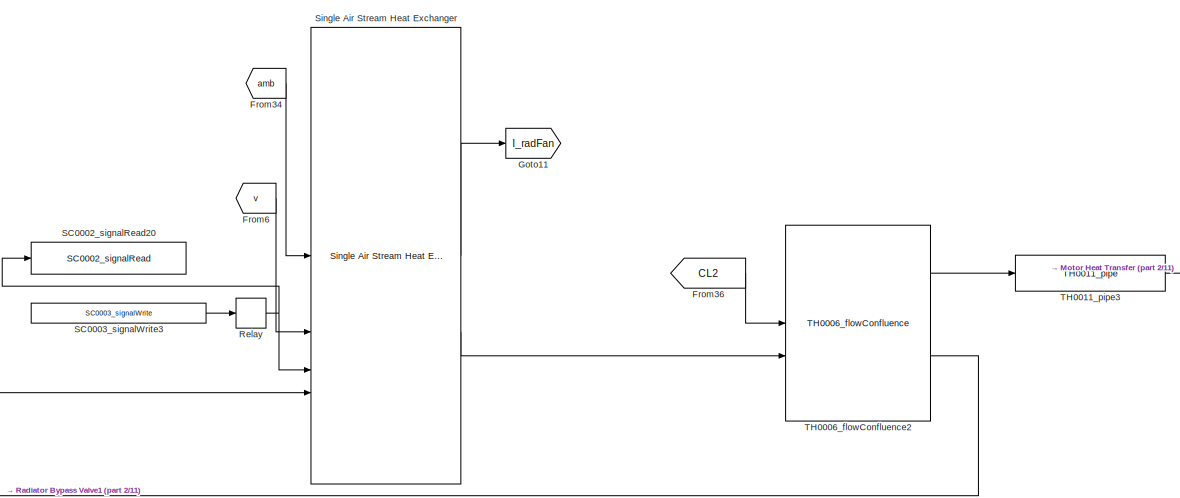
[diagram: root canvas - part 1/11, top right region]
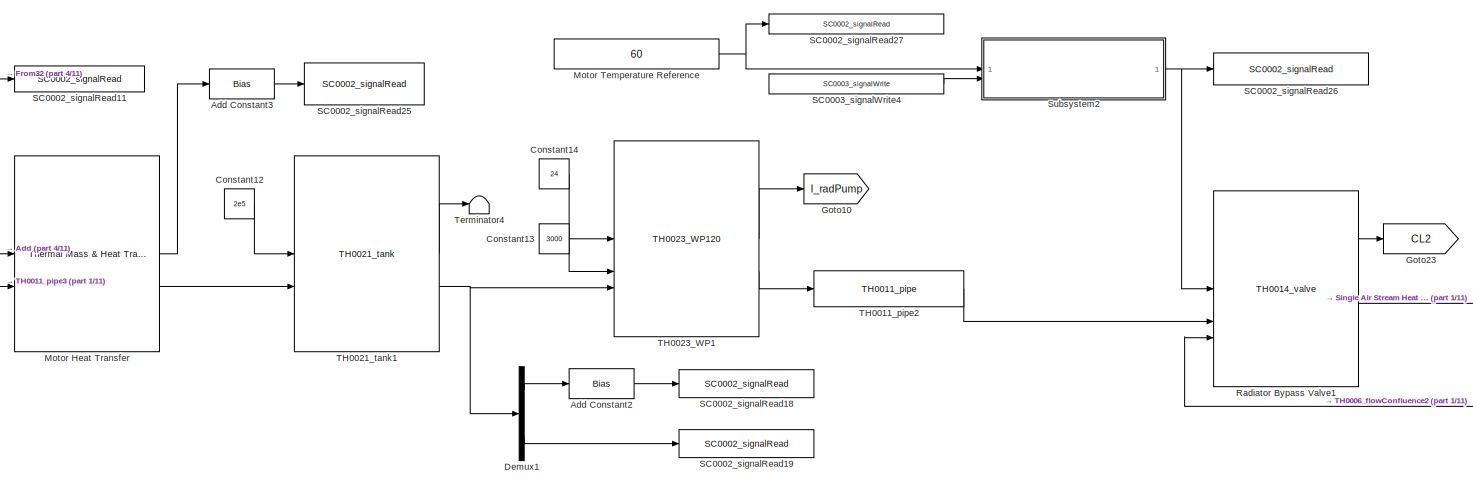
[diagram: root canvas - part 2/11, top center region]
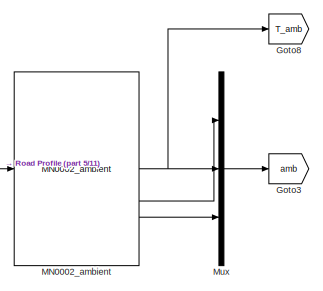
[diagram: root canvas - part 3/11, top left region]
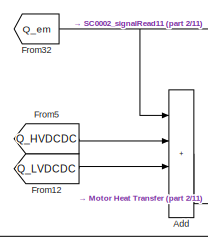
[diagram: root canvas - part 4/11, top center region]
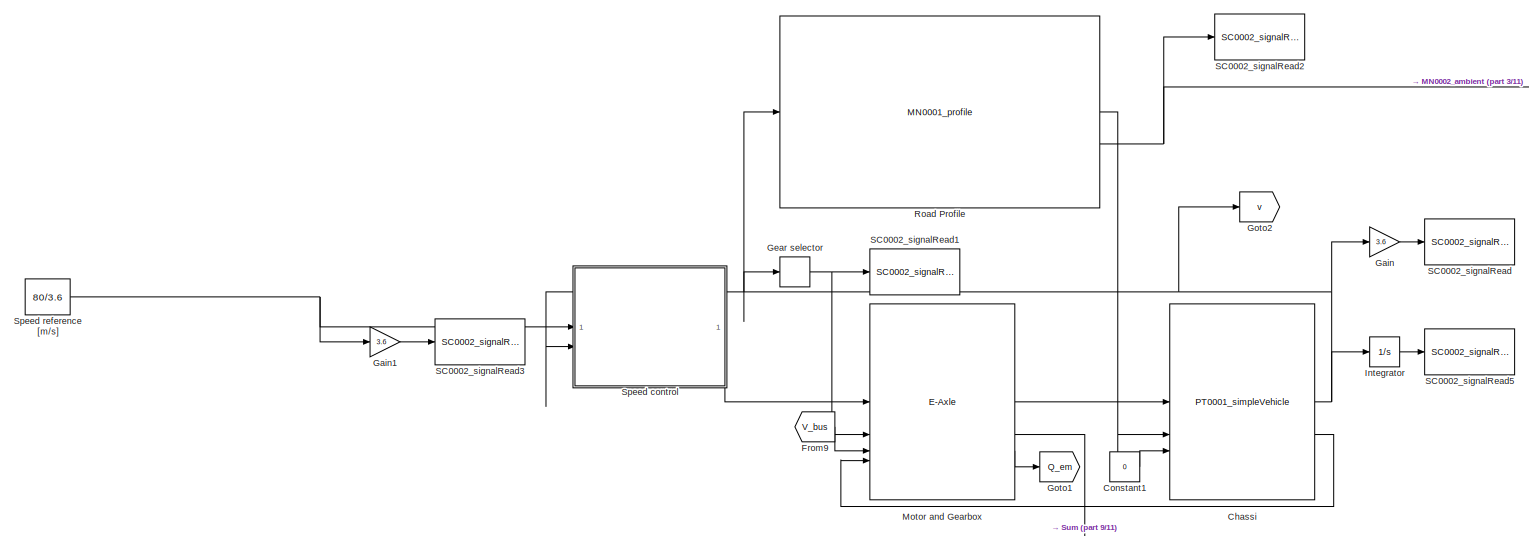
[diagram: root canvas - part 5/11, middle left region]
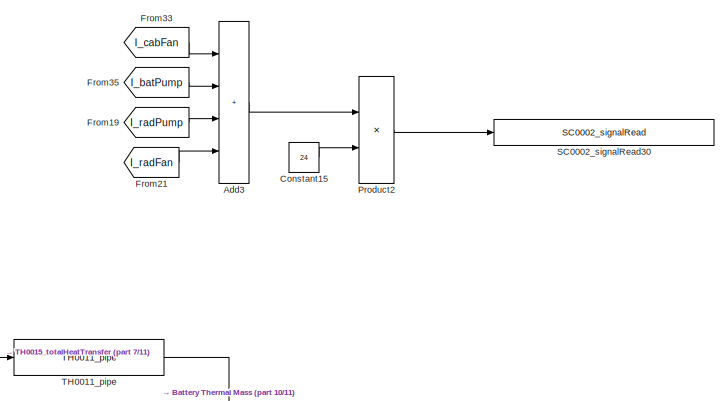
[diagram: root canvas - part 6/11, bottom right region]
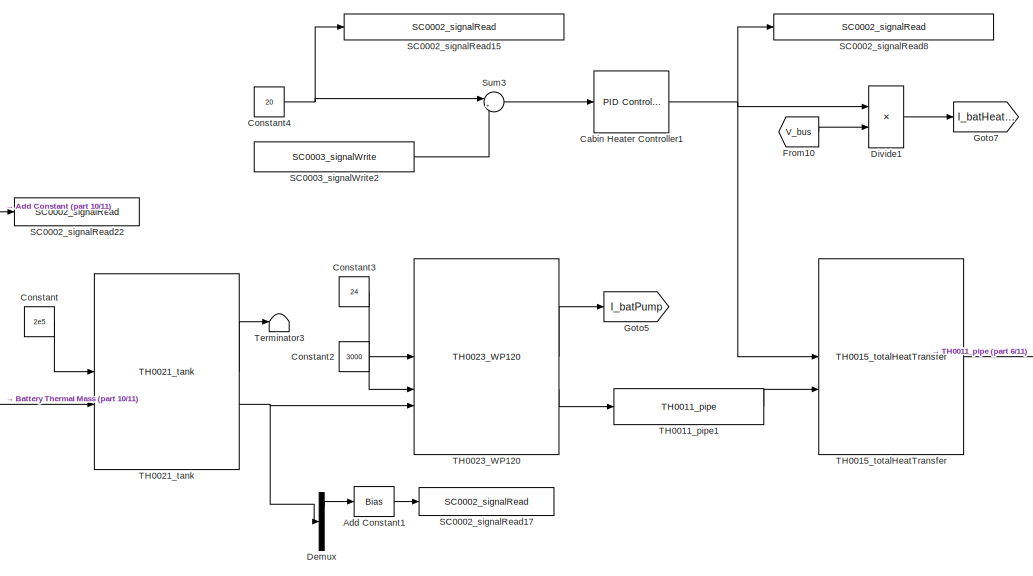
[diagram: root canvas - part 7/11, bottom right region]
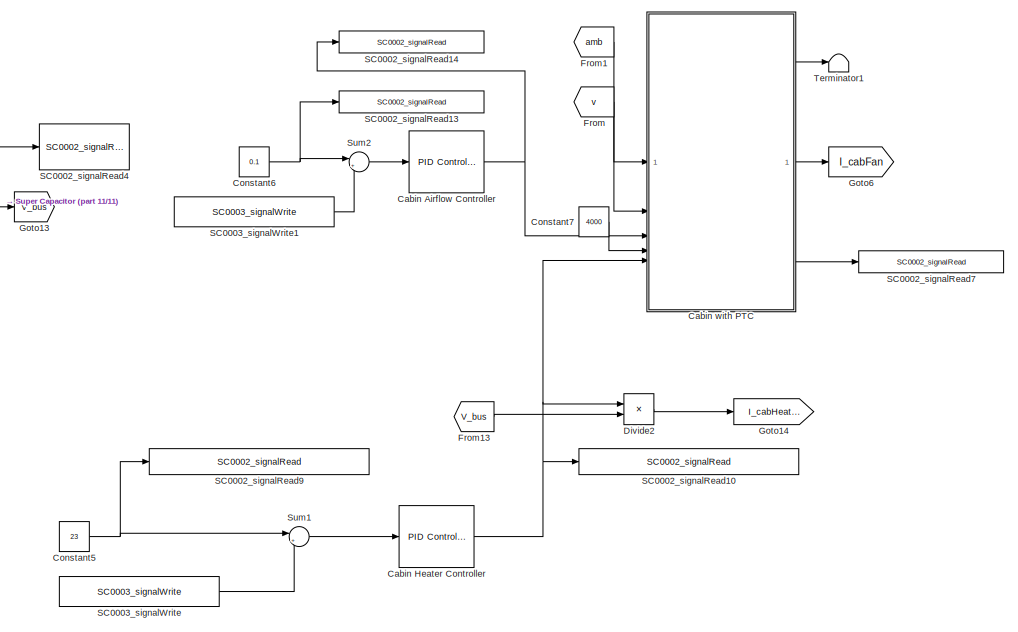
[diagram: root canvas - part 8/11, bottom center region]
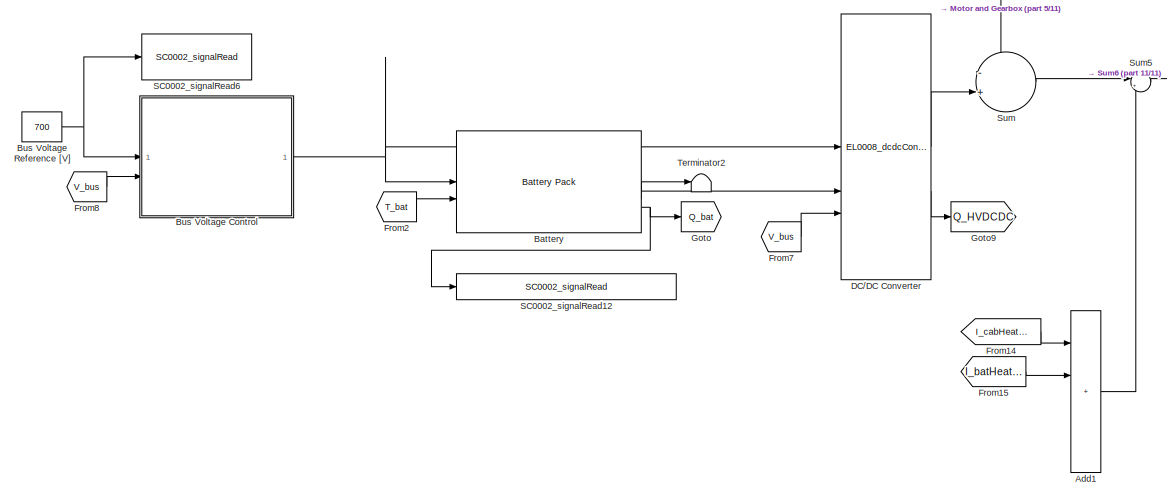
[diagram: root canvas - part 9/11, bottom left region]
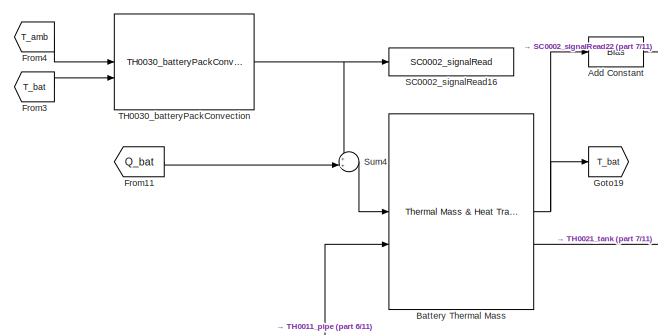
[diagram: root canvas - part 10/11, bottom center region]
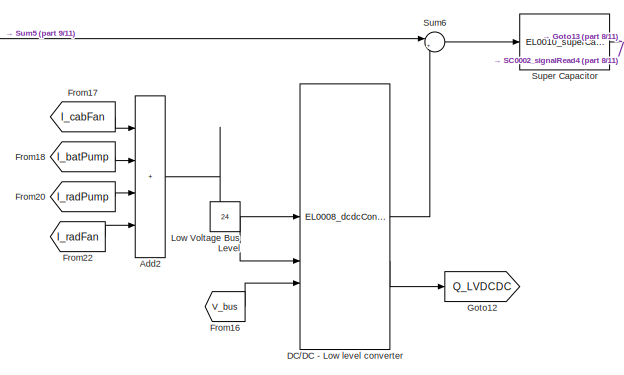
[diagram: root canvas - part 11/11, bottom left region]
MODEL slx_f05cbd5626cb
KIND model
CONFIG AbsTol = auto
CONFIG EnableMultiTasking = off
CONFIG FixedStep = auto
CONFIG MaxStep = 1
CONFIG MinStep = auto
CONFIG RelTol = 1e-3
CONFIG SampleTimeConstraint = Unconstrained
CONFIG SolverName = ode23tb
CONFIG StartTime = 0.0
CONFIG StopTime = 20e3
BLOCK [Sum] Add
  IconShape = rectangular
  Inputs = ++++
BLOCK [Bias] Add Constant
  Bias = -273.15
  SaturateOnIntegerOverflow = off
BLOCK [Bias] Add Constant1
  Bias = -273.15
  SaturateOnIntegerOverflow = off
BLOCK [Bias] Add Constant2
  Bias = -273.15
  SaturateOnIntegerOverflow = off
BLOCK [Bias] Add Constant3
  Bias = -273.15
  SaturateOnIntegerOverflow = off
BLOCK [Sum] Add1
  IconShape = rectangular
  Inputs = ++++
BLOCK [Sum] Add2
  IconShape = rectangular
  Inputs = ++++
BLOCK [Sum] Add3
  IconShape = rectangular
  Inputs = ++++
BLOCK [Reference] Battery  REF=component_lib/Battery Pack  (lib defined in slx_7b23c5cf3aa6)
  SourceBlock = component_lib/Battery Pack
BLOCK [Reference] Battery Thermal Mass  REF=component_lib/Thermal Mass & Heat Transfer  (lib defined in slx_7b23c5cf3aa6)
  SourceBlock = component_lib/Thermal Mass & Heat Transfer
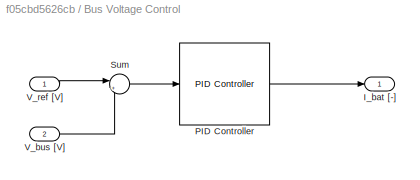
BLOCK [SubSystem] Bus Voltage Control
BLOCK [Outport] Bus Voltage Control/I_bat [-]
BLOCK [Reference] Bus Voltage Control/PID Controller  REF=slpidlib/PID Controller
  SourceBlock = slpidlib/PID Controller
  SourceType = PID 1dof
BLOCK [Sum] Bus Voltage Control/Sum
  Inputs = |+-
BLOCK [Inport] Bus Voltage Control/V_bus [V]
  Port = 2
BLOCK [Inport] Bus Voltage Control/V_ref [V]
BLOCK [Constant] Bus Voltage Reference [V]
  Value = 700
BLOCK [Reference] Cabin Airflow Controller  REF=slpidlib/PID Controller
  LibrarySourceBlock = simulink/Continuous/PID Controller
  SourceBlock = slpidlib/PID Controller
  SourceType = PID 1dof
BLOCK [Reference] Cabin Heater Controller  REF=slpidlib/PID Controller
  LibrarySourceBlock = simulink/Continuous/PID Controller
  SourceBlock = slpidlib/PID Controller
  SourceType = PID 1dof
BLOCK [Reference] Cabin Heater Controller1  REF=slpidlib/PID Controller
  LibrarySourceBlock = simulink/Continuous/PID Controller
  SourceBlock = slpidlib/PID Controller
  SourceType = PID 1dof
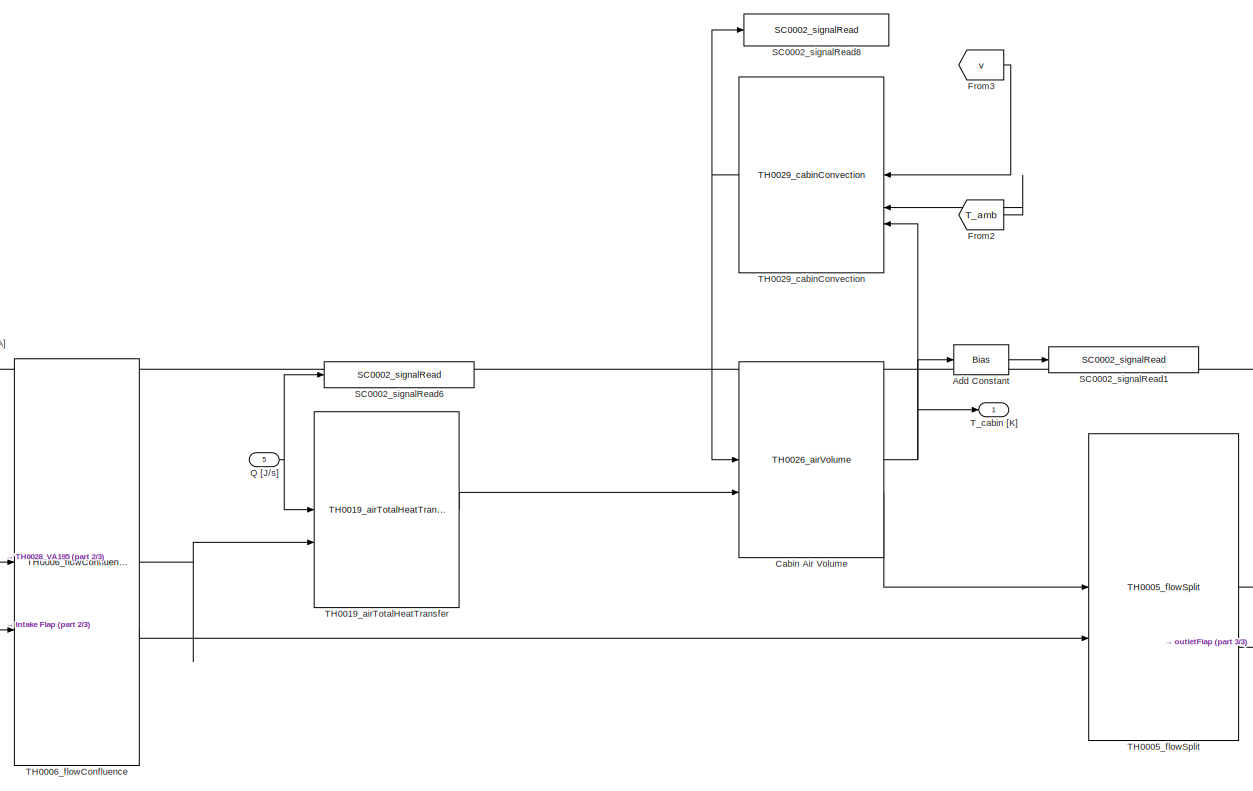
[diagram: Cabin with PTC - part 1/3, center side, full height]
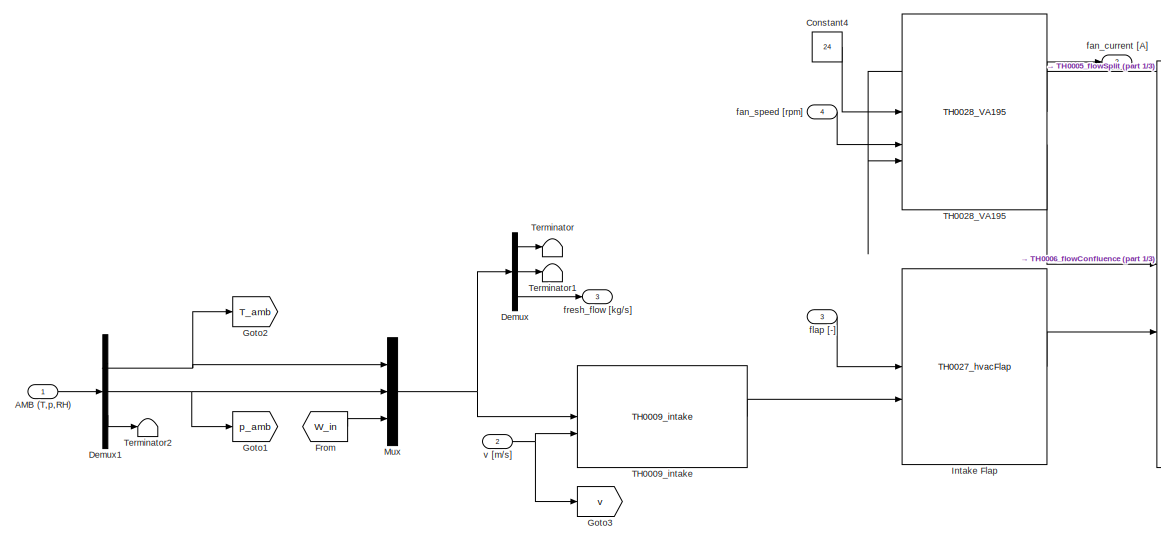
[diagram: Cabin with PTC - part 2/3, bottom left region]
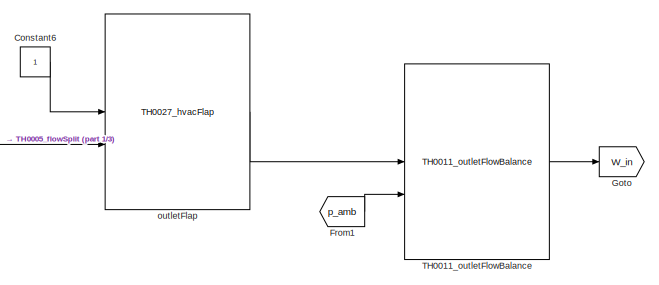
[diagram: Cabin with PTC - part 3/3, bottom right region]
BLOCK [SubSystem] Cabin with PTC
BLOCK [Inport] Cabin with PTC/AMB (T,p,RH)
BLOCK [Bias] Cabin with PTC/Add Constant
  Bias = -273.15
  SaturateOnIntegerOverflow = off
BLOCK [Reference] Cabin with PTC/Cabin Air Volume  REF=component_lib/Thermal Systems/TH0026_airVolume  (lib defined in slx_7b23c5cf3aa6)
  SourceBlock = component_lib/Thermal Systems/TH0026_airVolume
BLOCK [Constant] Cabin with PTC/Constant4
  Value = 24
BLOCK [Constant] Cabin with PTC/Constant6
BLOCK [Demux] Cabin with PTC/Demux
  Outputs = 3
BLOCK [Demux] Cabin with PTC/Demux1
  Outputs = 3
BLOCK [From] Cabin with PTC/From
  GotoTag = W_in
BLOCK [From] Cabin with PTC/From1
  GotoTag = p_amb
BLOCK [From] Cabin with PTC/From2
  GotoTag = T_amb
BLOCK [From] Cabin with PTC/From3
  GotoTag = v
BLOCK [Goto] Cabin with PTC/Goto
  GotoTag = W_in
BLOCK [Goto] Cabin with PTC/Goto1
  GotoTag = p_amb
BLOCK [Goto] Cabin with PTC/Goto2
  GotoTag = T_amb
BLOCK [Goto] Cabin with PTC/Goto3
  GotoTag = v
BLOCK [Reference] Cabin with PTC/Intake Flap  REF=component_lib/Thermal Systems/TH0027_hvacFlap  (lib defined in slx_7b23c5cf3aa6)
  SourceBlock = component_lib/Thermal Systems/TH0027_hvacFlap
BLOCK [Mux] Cabin with PTC/Mux
  DisplayOption = bar
  Inputs = 3
BLOCK [Inport] Cabin with PTC/Q [J//s]
  Port = 5
BLOCK [Reference] Cabin with PTC/SC0002_signalRead1  REF=component_lib/Data & Control/SC0002_signalRead  (lib defined in slx_7b23c5cf3aa6)
  SourceBlock = component_lib/Data & Control/SC0002_signalRead
BLOCK [Reference] Cabin with PTC/SC0002_signalRead6  REF=component_lib/Data & Control/SC0002_signalRead  (lib defined in slx_7b23c5cf3aa6)
  SourceBlock = component_lib/Data & Control/SC0002_signalRead
BLOCK [Reference] Cabin with PTC/SC0002_signalRead8  REF=component_lib/Data & Control/SC0002_signalRead  (lib defined in slx_7b23c5cf3aa6)
  SourceBlock = component_lib/Data & Control/SC0002_signalRead
BLOCK [Reference] Cabin with PTC/TH0005_flowSplit  REF=component_lib/Thermal Systems/TH0005_flowSplit  (lib defined in slx_7b23c5cf3aa6)
  SourceBlock = component_lib/Thermal Systems/TH0005_flowSplit
BLOCK [Reference] Cabin with PTC/TH0006_flowConfluence  REF=component_lib/Thermal Systems/TH0006_flowConfluence  (lib defined in slx_7b23c5cf3aa6)
  SourceBlock = component_lib/Thermal Systems/TH0006_flowConfluence
BLOCK [Reference] Cabin with PTC/TH0009_intake  REF=component_lib/Thermal Systems/TH0009_intake  (lib defined in slx_7b23c5cf3aa6)
  SourceBlock = component_lib/Thermal Systems/TH0009_intake
BLOCK [Reference] Cabin with PTC/TH0011_outletFlowBalance  REF=component_lib/Thermal Systems/TH0011_outletFlowBalance  (lib defined in slx_7b23c5cf3aa6)
  SourceBlock = component_lib/Thermal Systems/TH0011_outletFlowBalance
BLOCK [Reference] Cabin with PTC/TH0019_airTotalHeatTransfer  REF=component_lib/Thermal Systems/TH0019_airTotalHeatTransfer  (lib defined in slx_7b23c5cf3aa6)
  SourceBlock = component_lib/Thermal Systems/TH0019_airTotalHeatTransfer
BLOCK [Reference] Cabin with PTC/TH0028_VA195  REF=component_lib/Thermal Systems/TH0028_VA195  (lib defined in slx_7b23c5cf3aa6)
  LibrarySourceBlock = component_lib/Thermal Systems/TH0023_WP120
  SourceBlock = component_lib/Thermal Systems/TH0028_VA195
BLOCK [Reference] Cabin with PTC/TH0029_cabinConvection  REF=component_lib/Thermal Systems/TH0029_cabinConvection  (lib defined in slx_7b23c5cf3aa6)
  NameLocation = top
  SourceBlock = component_lib/Thermal Systems/TH0029_cabinConvection
BLOCK [Outport] Cabin with PTC/T_cabin [K]
BLOCK [Terminator] Cabin with PTC/Terminator
BLOCK [Terminator] Cabin with PTC/Terminator1
BLOCK [Terminator] Cabin with PTC/Terminator2
BLOCK [Outport] Cabin with PTC/fan_current [A]
  Port = 2
BLOCK [Inport] Cabin with PTC/fan_speed [rpm]
  Port = 4
BLOCK [Inport] Cabin with PTC/flap [-]
  Port = 3
BLOCK [Outport] Cabin with PTC/fresh_flow [kg//s]
  Port = 3
BLOCK [Reference] Cabin with PTC/outletFlap  REF=component_lib/Thermal Systems/TH0027_hvacFlap  (lib defined in slx_7b23c5cf3aa6)
  SourceBlock = component_lib/Thermal Systems/TH0027_hvacFlap
BLOCK [Inport] Cabin with PTC/v [m//s]
  Port = 2
BLOCK [Reference] Chassi  REF=component_lib/Powertrain/PT0001_simpleVehicle  (lib defined in slx_7b23c5cf3aa6)
  SourceBlock = component_lib/Powertrain/PT0001_simpleVehicle
BLOCK [Constant] Constant
  Value = 2e5
BLOCK [Constant] Constant1
  Value = 0
BLOCK [Constant] Constant12
  Value = 2e5
BLOCK [Constant] Constant13
  Value = 3000
BLOCK [Constant] Constant14
  Value = 24
BLOCK [Constant] Constant15
  Value = 24
BLOCK [Constant] Constant2
  Value = 3000
BLOCK [Constant] Constant3
  Value = 24
BLOCK [Constant] Constant4
  Value = 20
BLOCK [Constant] Constant5
  Value = 23
BLOCK [Constant] Constant6
  Value = 0.1
BLOCK [Constant] Constant7
  Value = 4000
BLOCK [Reference] DC//DC - Low level converter  REF=component_lib/Electrochemistry/EL0008_dcdcConverter  (lib defined in slx_7b23c5cf3aa6)
  SourceBlock = component_lib/Electrochemistry/EL0008_dcdcConverter
BLOCK [Reference] DC//DC Converter  REF=component_lib/Electrochemistry/EL0008_dcdcConverter  (lib defined in slx_7b23c5cf3aa6)
  SourceBlock = component_lib/Electrochemistry/EL0008_dcdcConverter
BLOCK [Demux] Demux
  Outputs = 3
BLOCK [Demux] Demux1
  Outputs = 3
BLOCK [Product] Divide1
  Inputs = */
BLOCK [Product] Divide2
  Inputs = */
BLOCK [From] From
  GotoTag = v
BLOCK [From] From1
  GotoTag = amb
BLOCK [From] From10
  GotoTag = V_bus
BLOCK [From] From11
  GotoTag = Q_bat
BLOCK [From] From12
  GotoTag = Q_LVDCDC
BLOCK [From] From13
  GotoTag = V_bus
BLOCK [From] From14
  GotoTag = I_cabHeater
BLOCK [From] From15
  GotoTag = I_batHeater
BLOCK [From] From16
  GotoTag = V_bus
BLOCK [From] From17
  GotoTag = I_cabFan
BLOCK [From] From18
  GotoTag = I_batPump
BLOCK [From] From19
  GotoTag = I_radPump
BLOCK [From] From2
  GotoTag = T_bat
BLOCK [From] From20
  GotoTag = I_radPump
BLOCK [From] From21
  GotoTag = I_radFan
BLOCK [From] From22
  GotoTag = I_radFan
BLOCK [From] From3
  GotoTag = T_bat
BLOCK [From] From32
  GotoTag = Q_em
BLOCK [From] From33
  GotoTag = I_cabFan
BLOCK [From] From34
  GotoTag = amb
BLOCK [From] From35
  GotoTag = I_batPump
BLOCK [From] From36
  GotoTag = CL2
BLOCK [From] From4
  GotoTag = T_amb
BLOCK [From] From5
  GotoTag = Q_HVDCDC
BLOCK [From] From6
  GotoTag = v
BLOCK [From] From7
  GotoTag = V_bus
BLOCK [From] From8
  GotoTag = V_bus
BLOCK [From] From9
  GotoTag = V_bus
BLOCK [Gain] Gain
  Gain = 3.6
BLOCK [Gain] Gain1
  Gain = 3.6
BLOCK [Relay] Gear selector
  OffOutputValue = 3
  OffSwitchValue = 21.5
  OnOutputValue = 4
  OnSwitchValue = 22
BLOCK [Goto] Goto
  GotoTag = Q_bat
BLOCK [Goto] Goto1
  GotoTag = Q_em
BLOCK [Goto] Goto10
  GotoTag = I_radPump
BLOCK [Goto] Goto11
  GotoTag = I_radFan
BLOCK [Goto] Goto12
  GotoTag = Q_LVDCDC
BLOCK [Goto] Goto13
  GotoTag = V_bus
BLOCK [Goto] Goto14
  GotoTag = I_cabHeater
BLOCK [Goto] Goto19
  GotoTag = T_bat
BLOCK [Goto] Goto2
  GotoTag = v
BLOCK [Goto] Goto23
  GotoTag = CL2
BLOCK [Goto] Goto3
  GotoTag = amb
BLOCK [Goto] Goto5
  GotoTag = I_batPump
BLOCK [Goto] Goto6
  GotoTag = I_cabFan
BLOCK [Goto] Goto7
  GotoTag = I_batHeater
BLOCK [Goto] Goto8
  GotoTag = T_amb
BLOCK [Goto] Goto9
  GotoTag = Q_HVDCDC
BLOCK [Integrator] Integrator
BLOCK [Constant] Low Voltage Bus Level
  Value = 24
BLOCK [Reference] MN0002_ambient  REF=component_lib/Mission/MN0002_ambient  (lib defined in slx_7b23c5cf3aa6)
  SourceBlock = component_lib/Mission/MN0002_ambient
BLOCK [Reference] Motor Heat Transfer  REF=component_lib/Thermal Mass & Heat Transfer  (lib defined in slx_7b23c5cf3aa6)
  SourceBlock = component_lib/Thermal Mass & Heat Transfer
BLOCK [Constant] Motor Temperature Reference
  NameLocation = top
  Value = 60
BLOCK [Reference] Motor and Gearbox  REF=component_lib/E-Axle  (lib defined in slx_7b23c5cf3aa6)
  SourceBlock = component_lib/E-Axle
BLOCK [Mux] Mux
  DisplayOption = bar
  Inputs = 3
BLOCK [Product] Product2
BLOCK [Reference] Radiator Bypass Valve1  REF=component_lib/Thermal Systems/TH0014_valve  (lib defined in slx_7b23c5cf3aa6)
  SourceBlock = component_lib/Thermal Systems/TH0014_valve
BLOCK [Relay] Relay
  OffSwitchValue = 75
  OnOutputValue = 3000
  OnSwitchValue = 85
  ZeroCross = off
BLOCK [Reference] Road Profile  REF=component_lib/Mission/MN0001_profile  (lib defined in slx_7b23c5cf3aa6)
  SourceBlock = component_lib/Mission/MN0001_profile
BLOCK [Reference] SC0002_signalRead  REF=component_lib/Data & Control/SC0002_signalRead  (lib defined in slx_7b23c5cf3aa6)
  SourceBlock = component_lib/Data & Control/SC0002_signalRead
BLOCK [Reference] SC0002_signalRead1  REF=component_lib/Data & Control/SC0002_signalRead  (lib defined in slx_7b23c5cf3aa6)
  SourceBlock = component_lib/Data & Control/SC0002_signalRead
BLOCK [Reference] SC0002_signalRead10  REF=component_lib/Data & Control/SC0002_signalRead  (lib defined in slx_7b23c5cf3aa6)
  SourceBlock = component_lib/Data & Control/SC0002_signalRead
BLOCK [Reference] SC0002_signalRead11  REF=component_lib/Data & Control/SC0002_signalRead  (lib defined in slx_7b23c5cf3aa6)
  SourceBlock = component_lib/Data & Control/SC0002_signalRead
BLOCK [Reference] SC0002_signalRead12  REF=component_lib/Data & Control/SC0002_signalRead  (lib defined in slx_7b23c5cf3aa6)
  SourceBlock = component_lib/Data & Control/SC0002_signalRead
BLOCK [Reference] SC0002_signalRead13  REF=component_lib/Data & Control/SC0002_signalRead  (lib defined in slx_7b23c5cf3aa6)
  SourceBlock = component_lib/Data & Control/SC0002_signalRead
BLOCK [Reference] SC0002_signalRead14  REF=component_lib/Data & Control/SC0002_signalRead  (lib defined in slx_7b23c5cf3aa6)
  SourceBlock = component_lib/Data & Control/SC0002_signalRead
BLOCK [Reference] SC0002_signalRead15  REF=component_lib/Data & Control/SC0002_signalRead  (lib defined in slx_7b23c5cf3aa6)
  SourceBlock = component_lib/Data & Control/SC0002_signalRead
BLOCK [Reference] SC0002_signalRead16  REF=component_lib/Data & Control/SC0002_signalRead  (lib defined in slx_7b23c5cf3aa6)
  SourceBlock = component_lib/Data & Control/SC0002_signalRead
BLOCK [Reference] SC0002_signalRead17  REF=component_lib/Data & Control/SC0002_signalRead  (lib defined in slx_7b23c5cf3aa6)
  SourceBlock = component_lib/Data & Control/SC0002_signalRead
BLOCK [Reference] SC0002_signalRead18  REF=component_lib/Data & Control/SC0002_signalRead  (lib defined in slx_7b23c5cf3aa6)
  SourceBlock = component_lib/Data & Control/SC0002_signalRead
BLOCK [Reference] SC0002_signalRead19  REF=component_lib/Data & Control/SC0002_signalRead  (lib defined in slx_7b23c5cf3aa6)
  SourceBlock = component_lib/Data & Control/SC0002_signalRead
BLOCK [Reference] SC0002_signalRead2  REF=component_lib/Data & Control/SC0002_signalRead  (lib defined in slx_7b23c5cf3aa6)
  SourceBlock = component_lib/Data & Control/SC0002_signalRead
BLOCK [Reference] SC0002_signalRead20  REF=component_lib/Data & Control/SC0002_signalRead  (lib defined in slx_7b23c5cf3aa6)
  SourceBlock = component_lib/Data & Control/SC0002_signalRead
BLOCK [Reference] SC0002_signalRead22  REF=component_lib/Data & Control/SC0002_signalRead  (lib defined in slx_7b23c5cf3aa6)
  SourceBlock = component_lib/Data & Control/SC0002_signalRead
BLOCK [Reference] SC0002_signalRead25  REF=component_lib/Data & Control/SC0002_signalRead  (lib defined in slx_7b23c5cf3aa6)
  SourceBlock = component_lib/Data & Control/SC0002_signalRead
BLOCK [Reference] SC0002_signalRead26  REF=component_lib/Data & Control/SC0002_signalRead  (lib defined in slx_7b23c5cf3aa6)
  SourceBlock = component_lib/Data & Control/SC0002_signalRead
BLOCK [Reference] SC0002_signalRead27  REF=component_lib/Data & Control/SC0002_signalRead  (lib defined in slx_7b23c5cf3aa6)
  SourceBlock = component_lib/Data & Control/SC0002_signalRead
BLOCK [Reference] SC0002_signalRead3  REF=component_lib/Data & Control/SC0002_signalRead  (lib defined in slx_7b23c5cf3aa6)
  SourceBlock = component_lib/Data & Control/SC0002_signalRead
BLOCK [Reference] SC0002_signalRead30  REF=component_lib/Data & Control/SC0002_signalRead  (lib defined in slx_7b23c5cf3aa6)
  SourceBlock = component_lib/Data & Control/SC0002_signalRead
BLOCK [Reference] SC0002_signalRead4  REF=component_lib/Data & Control/SC0002_signalRead  (lib defined in slx_7b23c5cf3aa6)
  SourceBlock = component_lib/Data & Control/SC0002_signalRead
BLOCK [Reference] SC0002_signalRead5  REF=component_lib/Data & Control/SC0002_signalRead  (lib defined in slx_7b23c5cf3aa6)
  SourceBlock = component_lib/Data & Control/SC0002_signalRead
BLOCK [Reference] SC0002_signalRead6  REF=component_lib/Data & Control/SC0002_signalRead  (lib defined in slx_7b23c5cf3aa6)
  SourceBlock = component_lib/Data & Control/SC0002_signalRead
BLOCK [Reference] SC0002_signalRead7  REF=component_lib/Data & Control/SC0002_signalRead  (lib defined in slx_7b23c5cf3aa6)
  SourceBlock = component_lib/Data & Control/SC0002_signalRead
BLOCK [Reference] SC0002_signalRead8  REF=component_lib/Data & Control/SC0002_signalRead  (lib defined in slx_7b23c5cf3aa6)
  SourceBlock = component_lib/Data & Control/SC0002_signalRead
BLOCK [Reference] SC0002_signalRead9  REF=component_lib/Data & Control/SC0002_signalRead  (lib defined in slx_7b23c5cf3aa6)
  SourceBlock = component_lib/Data & Control/SC0002_signalRead
BLOCK [Reference] SC0003_signalWrite  REF=component_lib/Data & Control/SC0003_signalWrite  (lib defined in slx_7b23c5cf3aa6)
  SourceBlock = component_lib/Data & Control/SC0003_signalWrite
BLOCK [Reference] SC0003_signalWrite1  REF=component_lib/Data & Control/SC0003_signalWrite  (lib defined in slx_7b23c5cf3aa6)
  SourceBlock = component_lib/Data & Control/SC0003_signalWrite
BLOCK [Reference] SC0003_signalWrite2  REF=component_lib/Data & Control/SC0003_signalWrite  (lib defined in slx_7b23c5cf3aa6)
  SourceBlock = component_lib/Data & Control/SC0003_signalWrite
BLOCK [Reference] SC0003_signalWrite3  REF=component_lib/Data & Control/SC0003_signalWrite  (lib defined in slx_7b23c5cf3aa6)
  SourceBlock = component_lib/Data & Control/SC0003_signalWrite
BLOCK [Reference] SC0003_signalWrite4  REF=component_lib/Data & Control/SC0003_signalWrite  (lib defined in slx_7b23c5cf3aa6)
  SourceBlock = component_lib/Data & Control/SC0003_signalWrite
BLOCK [Reference] Single Air Stream Heat Exchanger  REF=component_lib/Single Air Stream Heat Exchanger  (lib defined in slx_7b23c5cf3aa6)
  SourceBlock = component_lib/Single Air Stream Heat Exchanger
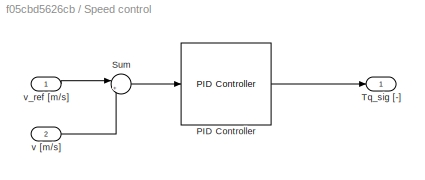
BLOCK [SubSystem] Speed control
BLOCK [Reference] Speed control/PID Controller  REF=slpidlib/PID Controller
  SourceBlock = slpidlib/PID Controller
  SourceType = PID 1dof
BLOCK [Sum] Speed control/Sum
  Inputs = |+-
BLOCK [Outport] Speed control/Tq_sig [-]
BLOCK [Inport] Speed control/v [m//s]
  Port = 2
BLOCK [Inport] Speed control/v_ref [m//s]
BLOCK [Constant] Speed reference [m//s]
  Value = 80/3.6
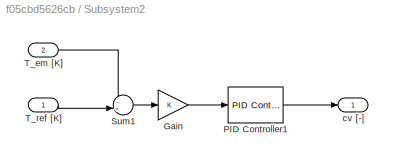
BLOCK [SubSystem] Subsystem2
BLOCK [Gain] Subsystem2/Gain
BLOCK [Reference] Subsystem2/PID Controller1  REF=slpidlib/PID Controller
  SourceBlock = slpidlib/PID Controller
  SourceType = PID 1dof
BLOCK [Sum] Subsystem2/Sum1
  Inputs = -+|
BLOCK [Inport] Subsystem2/T_em [K]
  Port = 2
BLOCK [Inport] Subsystem2/T_ref [K]
BLOCK [Outport] Subsystem2/cv [-]
BLOCK [Sum] Sum
  Inputs = -+|
BLOCK [Sum] Sum1
  Inputs = |+-
BLOCK [Sum] Sum2
  Inputs = |+-
BLOCK [Sum] Sum3
  Inputs = |+-
BLOCK [Sum] Sum4
  Inputs = ++|
BLOCK [Sum] Sum5
  Inputs = |+-
BLOCK [Sum] Sum6
  Inputs = |+-
BLOCK [Reference] Super Capacitor  REF=component_lib/Electrochemistry/EL0010_superCapacitor  (lib defined in slx_7b23c5cf3aa6)
  SourceBlock = component_lib/Electrochemistry/EL0010_superCapacitor
BLOCK [Reference] TH0006_flowConfluence2  REF=component_lib/Thermal Systems/TH0006_flowConfluence  (lib defined in slx_7b23c5cf3aa6)
  SourceBlock = component_lib/Thermal Systems/TH0006_flowConfluence
BLOCK [Reference] TH0011_pipe  REF=component_lib/Thermal Systems/TH0011_pipe  (lib defined in slx_7b23c5cf3aa6)
  SourceBlock = component_lib/Thermal Systems/TH0011_pipe
BLOCK [Reference] TH0011_pipe1  REF=component_lib/Thermal Systems/TH0011_pipe  (lib defined in slx_7b23c5cf3aa6)
  SourceBlock = component_lib/Thermal Systems/TH0011_pipe
BLOCK [Reference] TH0011_pipe2  REF=component_lib/Thermal Systems/TH0011_pipe  (lib defined in slx_7b23c5cf3aa6)
  SourceBlock = component_lib/Thermal Systems/TH0011_pipe
BLOCK [Reference] TH0011_pipe3  REF=component_lib/Thermal Systems/TH0011_pipe  (lib defined in slx_7b23c5cf3aa6)
  SourceBlock = component_lib/Thermal Systems/TH0011_pipe
BLOCK [Reference] TH0015_totalHeatTransfer  REF=component_lib/Thermal Systems/TH0015_totalHeatTransfer  (lib defined in slx_7b23c5cf3aa6)
  SourceBlock = component_lib/Thermal Systems/TH0015_totalHeatTransfer
BLOCK [Reference] TH0021_tank  REF=component_lib/Thermal Systems/TH0021_tank  (lib defined in slx_7b23c5cf3aa6)
  SourceBlock = component_lib/Thermal Systems/TH0021_tank
BLOCK [Reference] TH0021_tank1  REF=component_lib/Thermal Systems/TH0021_tank  (lib defined in slx_7b23c5cf3aa6)
  SourceBlock = component_lib/Thermal Systems/TH0021_tank
BLOCK [Reference] TH0023_WP1  REF=component_lib/Thermal Systems/TH0023_WP120  (lib defined in slx_7b23c5cf3aa6)
  SourceBlock = component_lib/Thermal Systems/TH0023_WP120
BLOCK [Reference] TH0023_WP120  REF=component_lib/Thermal Systems/TH0023_WP120  (lib defined in slx_7b23c5cf3aa6)
  SourceBlock = component_lib/Thermal Systems/TH0023_WP120
BLOCK [Reference] TH0030_batteryPackConvection  REF=component_lib/Thermal Systems/TH0030_batteryPackConvection  (lib defined in slx_7b23c5cf3aa6)
  SourceBlock = component_lib/Thermal Systems/TH0030_batteryPackConvection
BLOCK [Terminator] Terminator1
BLOCK [Terminator] Terminator2
  NameLocation = right
BLOCK [Terminator] Terminator3
BLOCK [Terminator] Terminator4
LINE Add Constant1:1 -> SC0002_signalRead17:1
LINE Add Constant2:1 -> SC0002_signalRead18:1
LINE Add Constant3:1 -> SC0002_signalRead25:1
LINE Add Constant:1 -> SC0002_signalRead22:1
LINE Add1:1 -> Sum5:2
LINE Add2:1 -> DC//DC - Low level converter:1
LINE Add3:1 -> Product2:1
LINE Add:1 -> Motor Heat Transfer:1
NET Battery Thermal Mass:1 -> Add Constant:1, Goto19:1
LINE Battery Thermal Mass:2 -> TH0021_tank:2
LINE Battery:1 -> DC//DC Converter:2
LINE Battery:2 -> Terminator2:1
NET Battery:3 -> Goto:1, SC0002_signalRead12:1
LINE Bus Voltage Control/PID Controller:1 -> Bus Voltage Control/I_bat [-]:1
LINE Bus Voltage Control/Sum:1 -> Bus Voltage Control/PID Controller:1
LINE Bus Voltage Control/V_bus [V]:1 -> Bus Voltage Control/Sum:2
LINE Bus Voltage Control/V_ref [V]:1 -> Bus Voltage Control/Sum:1
NET Bus Voltage Control:1 -> Battery:1, DC//DC Converter:1
NET Bus Voltage Reference [V]:1 -> Bus Voltage Control:1, SC0002_signalRead6:1
NET Cabin Airflow Controller:1 -> Cabin with PTC:3, SC0002_signalRead14:1
NET Cabin Heater Controller1:1 -> Divide1:1, SC0002_signalRead8:1, TH0015_totalHeatTransfer:1
NET Cabin Heater Controller:1 -> Cabin with PTC:5, Divide2:1, SC0002_signalRead10:1
LINE Cabin with PTC/AMB (T,p,RH):1 -> Cabin with PTC/Demux1:1
LINE Cabin with PTC/Add Constant:1 -> Cabin with PTC/SC0002_signalRead1:1
NET Cabin with PTC/Cabin Air Volume:1 -> Cabin with PTC/Add Constant:1, Cabin with PTC/TH0029_cabinConvection:3, Cabin with PTC/T_cabin [K]:1
LINE Cabin with PTC/Cabin Air Volume:2 -> Cabin with PTC/TH0005_flowSplit:1
LINE Cabin with PTC/Constant4:1 -> Cabin with PTC/TH0028_VA195:1
LINE Cabin with PTC/Constant6:1 -> Cabin with PTC/outletFlap:1
NET Cabin with PTC/Demux1:1 -> Cabin with PTC/Goto2:1, Cabin with PTC/Mux:1
NET Cabin with PTC/Demux1:2 -> Cabin with PTC/Goto1:1, Cabin with PTC/Mux:2
LINE Cabin with PTC/Demux1:3 -> Cabin with PTC/Terminator2:1
LINE Cabin with PTC/Demux:1 -> Cabin with PTC/Terminator:1
LINE Cabin with PTC/Demux:2 -> Cabin with PTC/Terminator1:1
LINE Cabin with PTC/Demux:3 -> Cabin with PTC/fresh_flow [kg//s]:1
LINE Cabin with PTC/From1:1 -> Cabin with PTC/TH0011_outletFlowBalance:2
LINE Cabin with PTC/From2:1 -> Cabin with PTC/TH0029_cabinConvection:2
LINE Cabin with PTC/From3:1 -> Cabin with PTC/TH0029_cabinConvection:1
LINE Cabin with PTC/From:1 -> Cabin with PTC/Mux:3
LINE Cabin with PTC/Intake Flap:1 -> Cabin with PTC/TH0006_flowConfluence:2
NET Cabin with PTC/Mux:1 -> Cabin with PTC/Demux:1, Cabin with PTC/TH0009_intake:1
NET Cabin with PTC/Q [J//s]:1 -> Cabin with PTC/SC0002_signalRead6:1, Cabin with PTC/TH0019_airTotalHeatTransfer:1
LINE Cabin with PTC/TH0005_flowSplit:1 -> Cabin with PTC/TH0028_VA195:3
LINE Cabin with PTC/TH0005_flowSplit:2 -> Cabin with PTC/outletFlap:2
LINE Cabin with PTC/TH0006_flowConfluence:1 -> Cabin with PTC/TH0019_airTotalHeatTransfer:2
LINE Cabin with PTC/TH0006_flowConfluence:2 -> Cabin with PTC/TH0005_flowSplit:2
LINE Cabin with PTC/TH0009_intake:1 -> Cabin with PTC/Intake Flap:2
LINE Cabin with PTC/TH0011_outletFlowBalance:1 -> Cabin with PTC/Goto:1
LINE Cabin with PTC/TH0019_airTotalHeatTransfer:1 -> Cabin with PTC/Cabin Air Volume:2
LINE Cabin with PTC/TH0028_VA195:1 -> Cabin with PTC/fan_current [A]:1
LINE Cabin with PTC/TH0028_VA195:2 -> Cabin with PTC/TH0006_flowConfluence:1
NET Cabin with PTC/TH0029_cabinConvection:1 -> Cabin with PTC/Cabin Air Volume:1, Cabin with PTC/SC0002_signalRead8:1
LINE Cabin with PTC/fan_speed [rpm]:1 -> Cabin with PTC/TH0028_VA195:2
LINE Cabin with PTC/flap [-]:1 -> Cabin with PTC/Intake Flap:1
LINE Cabin with PTC/outletFlap:1 -> Cabin with PTC/TH0011_outletFlowBalance:1
NET Cabin with PTC/v [m//s]:1 -> Cabin with PTC/Goto3:1, Cabin with PTC/TH0009_intake:2
LINE Cabin with PTC:1 -> Terminator1:1
LINE Cabin with PTC:2 -> Goto6:1
LINE Cabin with PTC:3 -> SC0002_signalRead7:1
NET Chassi:1 -> Gain:1, Gear selector:1, Goto2:1, Integrator:1, Road Profile:1, Speed control:2
LINE Chassi:2 -> Motor and Gearbox:4
LINE Constant12:1 -> TH0021_tank1:1
LINE Constant13:1 -> TH0023_WP1:2
LINE Constant14:1 -> TH0023_WP1:1
LINE Constant15:1 -> Product2:2
LINE Constant1:1 -> Chassi:3
LINE Constant2:1 -> TH0023_WP120:2
LINE Constant3:1 -> TH0023_WP120:1
NET Constant4:1 -> SC0002_signalRead15:1, Sum3:1
NET Constant5:1 -> SC0002_signalRead9:1, Sum1:1
NET Constant6:1 -> SC0002_signalRead13:1, Sum2:1
LINE Constant7:1 -> Cabin with PTC:4
LINE Constant:1 -> TH0021_tank:1
LINE DC//DC - Low level converter:1 -> Sum6:2
LINE DC//DC - Low level converter:2 -> Goto12:1
LINE DC//DC Converter:1 -> Sum:2
LINE DC//DC Converter:2 -> Goto9:1
LINE Demux1:1 -> Add Constant2:1
LINE Demux1:3 -> SC0002_signalRead19:1
LINE Demux:1 -> Add Constant1:1
LINE Divide1:1 -> Goto7:1
LINE Divide2:1 -> Goto14:1
LINE From10:1 -> Divide1:2
LINE From11:1 -> Sum4:2
LINE From12:1 -> Add:3
LINE From13:1 -> Divide2:2
LINE From14:1 -> Add1:1
LINE From15:1 -> Add1:2
LINE From16:1 -> DC//DC - Low level converter:3
LINE From17:1 -> Add2:1
LINE From18:1 -> Add2:2
LINE From19:1 -> Add3:3
LINE From1:1 -> Cabin with PTC:1
LINE From20:1 -> Add2:3
LINE From21:1 -> Add3:4
LINE From22:1 -> Add2:4
LINE From2:1 -> Battery:2
NET From32:1 -> Add:1, SC0002_signalRead11:1
LINE From33:1 -> Add3:1
LINE From34:1 -> Single Air Stream Heat Exchanger:1
LINE From35:1 -> Add3:2
LINE From36:1 -> TH0006_flowConfluence2:1
LINE From3:1 -> TH0030_batteryPackConvection:2
LINE From4:1 -> TH0030_batteryPackConvection:1
LINE From5:1 -> Add:2
LINE From6:1 -> Single Air Stream Heat Exchanger:2
LINE From7:1 -> DC//DC Converter:3
LINE From8:1 -> Bus Voltage Control:2
LINE From9:1 -> Motor and Gearbox:3
LINE From:1 -> Cabin with PTC:2
LINE Gain1:1 -> SC0002_signalRead3:1
LINE Gain:1 -> SC0002_signalRead:1
NET Gear selector:1 -> Motor and Gearbox:2, SC0002_signalRead1:1
LINE Integrator:1 -> SC0002_signalRead5:1
LINE Low Voltage Bus Level:1 -> DC//DC - Low level converter:2
NET MN0002_ambient:1 -> Goto8:1, Mux:1
LINE MN0002_ambient:2 -> Mux:2
LINE MN0002_ambient:3 -> Mux:3
LINE Motor Heat Transfer:1 -> Add Constant3:1
LINE Motor Heat Transfer:2 -> TH0021_tank1:2
NET Motor Temperature Reference:1 -> SC0002_signalRead27:1, Subsystem2:1
LINE Motor and Gearbox:1 -> Chassi:1
LINE Motor and Gearbox:2 -> Sum:1
LINE Motor and Gearbox:3 -> Goto1:1
LINE Mux:1 -> Goto3:1
LINE Product2:1 -> SC0002_signalRead30:1
LINE Radiator Bypass Valve1:1 -> Goto23:1
LINE Radiator Bypass Valve1:2 -> Single Air Stream Heat Exchanger:4
NET Relay:1 -> SC0002_signalRead20:1, Single Air Stream Heat Exchanger:3
LINE Road Profile:1 -> Chassi:2
NET Road Profile:2 -> MN0002_ambient:1, SC0002_signalRead2:1
LINE SC0003_signalWrite1:1 -> Sum2:2
LINE SC0003_signalWrite2:1 -> Sum3:2
LINE SC0003_signalWrite3:1 -> Relay:1
LINE SC0003_signalWrite4:1 -> Subsystem2:2
LINE SC0003_signalWrite:1 -> Sum1:2
LINE Single Air Stream Heat Exchanger:1 -> Goto11:1
LINE Single Air Stream Heat Exchanger:2 -> TH0006_flowConfluence2:2
LINE Speed control/PID Controller:1 -> Speed control/Tq_sig [-]:1
LINE Speed control/Sum:1 -> Speed control/PID Controller:1
LINE Speed control/v [m//s]:1 -> Speed control/Sum:2
LINE Speed control/v_ref [m//s]:1 -> Speed control/Sum:1
LINE Speed control:1 -> Motor and Gearbox:1
NET Speed reference [m//s]:1 -> Gain1:1, Speed control:1
LINE Subsystem2/Gain:1 -> Subsystem2/PID Controller1:1
LINE Subsystem2/PID Controller1:1 -> Subsystem2/cv [-]:1
LINE Subsystem2/Sum1:1 -> Subsystem2/Gain:1
LINE Subsystem2/T_em [K]:1 -> Subsystem2/Sum1:1
LINE Subsystem2/T_ref [K]:1 -> Subsystem2/Sum1:2
NET Subsystem2:1 -> Radiator Bypass Valve1:1, SC0002_signalRead26:1
LINE Sum1:1 -> Cabin Heater Controller:1
LINE Sum2:1 -> Cabin Airflow Controller:1
LINE Sum3:1 -> Cabin Heater Controller1:1
LINE Sum4:1 -> Battery Thermal Mass:1
LINE Sum5:1 -> Sum6:1
LINE Sum6:1 -> Super Capacitor:1
LINE Sum:1 -> Sum5:1
NET Super Capacitor:1 -> Goto13:1, SC0002_signalRead4:1
LINE TH0006_flowConfluence2:1 -> TH0011_pipe3:1
LINE TH0006_flowConfluence2:2 -> Radiator Bypass Valve1:3
LINE TH0011_pipe1:1 -> TH0015_totalHeatTransfer:2
LINE TH0011_pipe2:1 -> Radiator Bypass Valve1:2
LINE TH0011_pipe3:1 -> Motor Heat Transfer:2
LINE TH0011_pipe:1 -> Battery Thermal Mass:2
LINE TH0015_totalHeatTransfer:1 -> TH0011_pipe:1
LINE TH0021_tank1:1 -> Terminator4:1
NET TH0021_tank1:2 -> Demux1:1, TH0023_WP1:3
LINE TH0021_tank:1 -> Terminator3:1
NET TH0021_tank:2 -> Demux:1, TH0023_WP120:3
LINE TH0023_WP120:1 -> Goto5:1
LINE TH0023_WP120:2 -> TH0011_pipe1:1
LINE TH0023_WP1:1 -> Goto10:1
LINE TH0023_WP1:2 -> TH0011_pipe2:1
NET TH0030_batteryPackConvection:1 -> SC0002_signalRead16:1, Sum4:1
note: NET lines group one-source signal fan-out (src -> all destinations, sorted); 1:1 wires keep LINE
